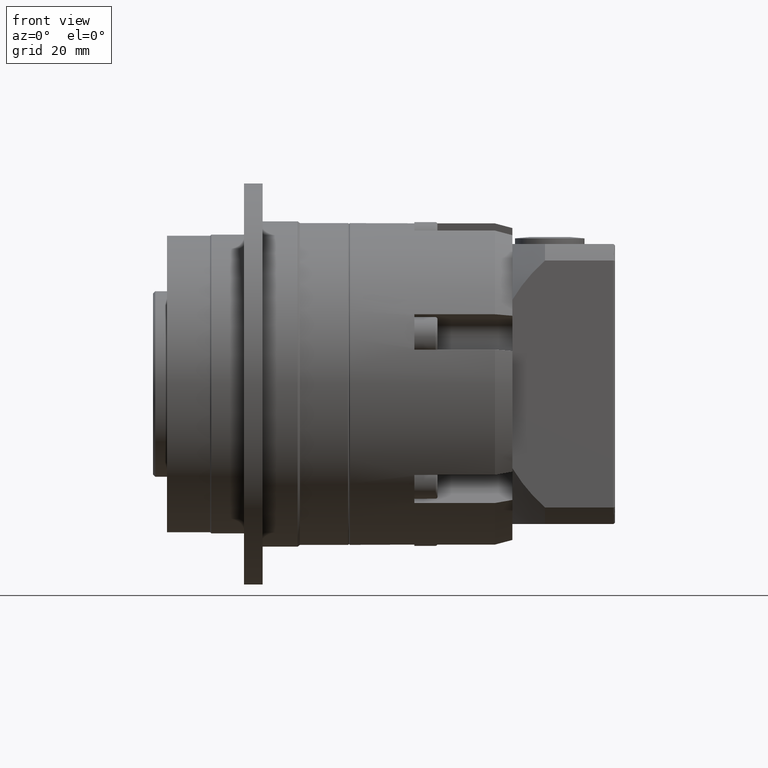
[diagram: clean part render]
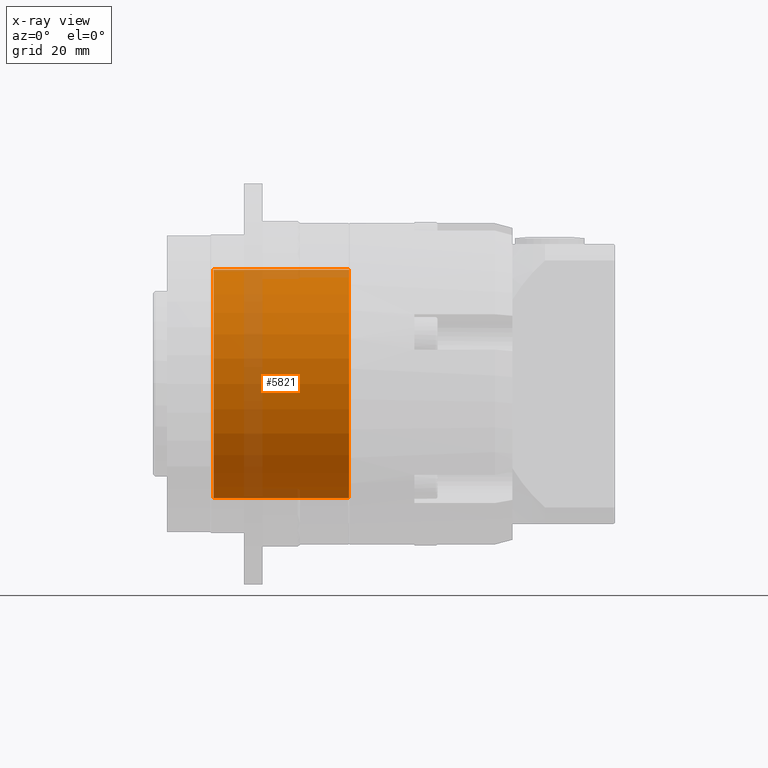
[diagram: x-ray — body ghosted, one internal face saturated and labeled with its STEP entity id]
A machine part, front view, then the same camera in x-ray: the body is ghosted and one INTERNAL B-rep face — a face not visible from any outside direction — is saturated and labeled: STEP entity #5821.
In plain terms, the highlighted cylindrical surface (bore or boss wall) has radius 24.45 mm, axis along (1, -0, 0).
Its self-contained STEP definition (entity closure, byte-faithful):
#1079=FACE_BOUND('',#1721,.T.);
#1288=FACE_OUTER_BOUND('',#1720,.T.);
#1720=EDGE_LOOP('',(#3939));
#1721=EDGE_LOOP('',(#3940));
#2263=CIRCLE('',#6282,24.45);
#2264=CIRCLE('',#6283,24.45);
#2592=VERTEX_POINT('',#8803);
#2593=VERTEX_POINT('',#8805);
#3139=EDGE_CURVE('',#2592,#2592,#2263,.T.);
#3140=EDGE_CURVE('',#2593,#2593,#2264,.T.);
#3939=ORIENTED_EDGE('',*,*,#3139,.T.);
#3940=ORIENTED_EDGE('',*,*,#3140,.F.);
#5381=CYLINDRICAL_SURFACE('',#6281,24.45);
#5821=ADVANCED_FACE('',(#1288,#1079),#5381,.F.);
#6281=AXIS2_PLACEMENT_3D('',#8802,#7108,#7109);
#6282=AXIS2_PLACEMENT_3D('',#8804,#7110,#7111);
#6283=AXIS2_PLACEMENT_3D('',#8806,#7112,#7113);
#7108=DIRECTION('center_axis',(1.,-4.82253126321556E-16,2.92855270575438E-15));
#7109=DIRECTION('ref_axis',(2.92855270575438E-15,3.1086244689506E-15,-1.));
#7110=DIRECTION('center_axis',(-1.,4.82253126321556E-16,-2.92855270575438E-15));
#7111=DIRECTION('ref_axis',(2.92855270575438E-15,3.1086244689506E-15,-1.));
#7112=DIRECTION('center_axis',(-1.,4.82253126321556E-16,-2.92855270575438E-15));
#7113=DIRECTION('ref_axis',(2.92855270575438E-15,3.1086244689506E-15,-1.));
#8802=CARTESIAN_POINT('Origin',(-49.5076060326597,-44.5811336692429,18.8582107166));
#8803=CARTESIAN_POINT('',(-39.5076060326597,-44.5811336692429,43.3082107166));
#8804=CARTESIAN_POINT('Origin',(-39.5076060326597,-44.5811336692429,18.8582107166));
#8805=CARTESIAN_POINT('',(-10.5076060326597,-44.5811336692429,43.3082107166001));
#8806=CARTESIAN_POINT('Origin',(-10.5076060326597,-44.5811336692429,18.8582107166001));